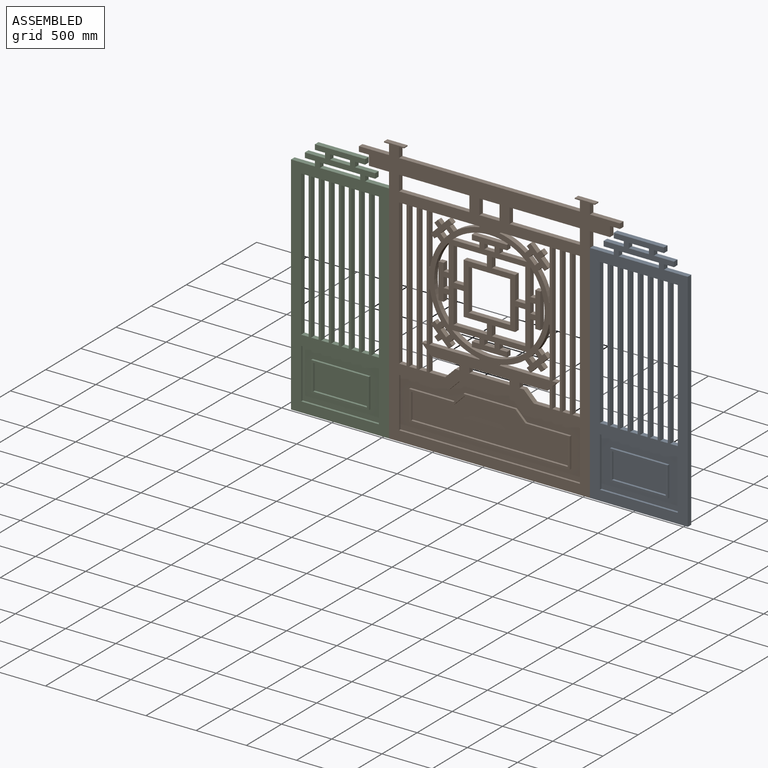
[diagram: assembled view]
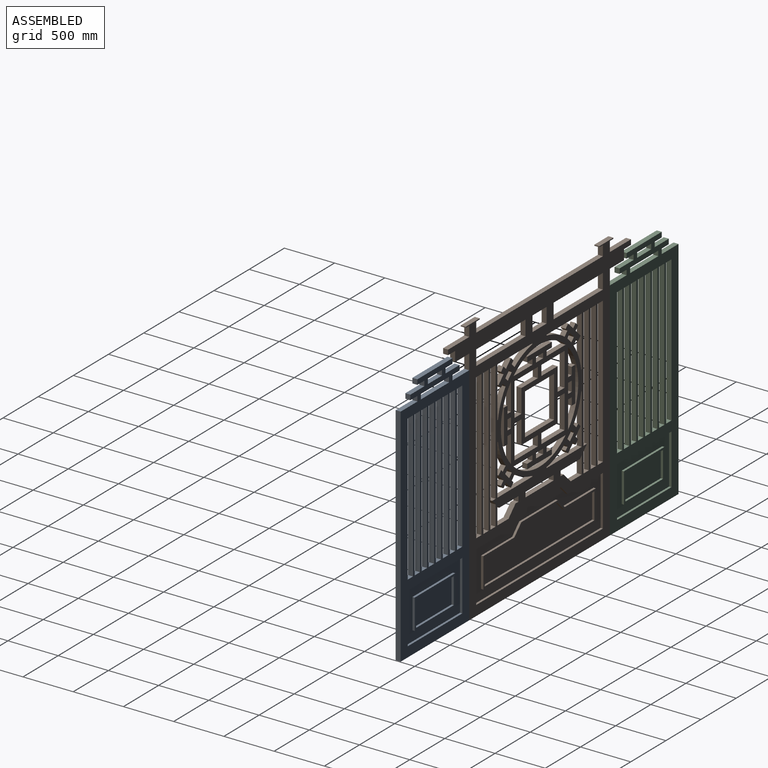
[diagram: assembled view, second angle]
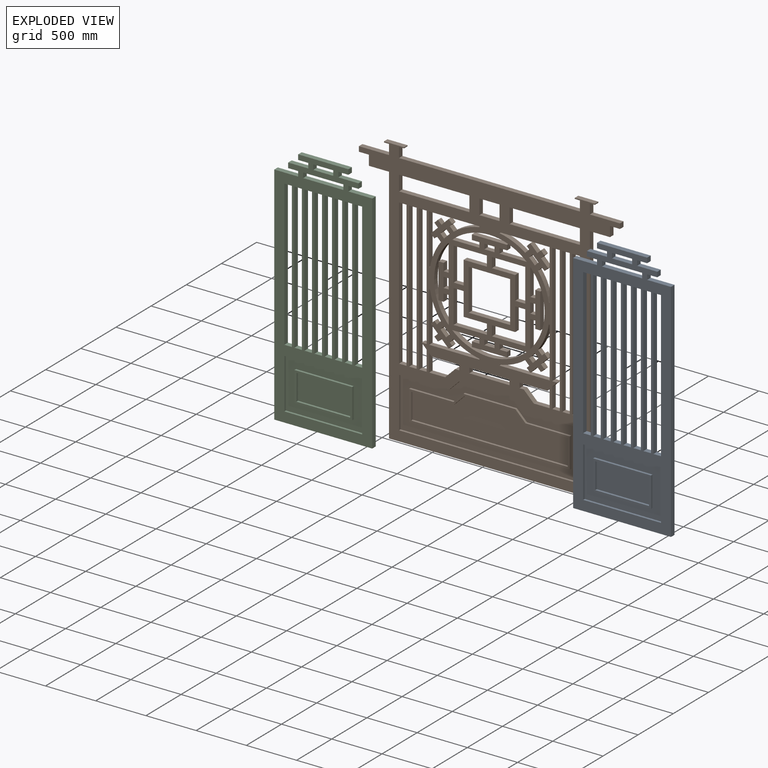
[diagram: exploded view]
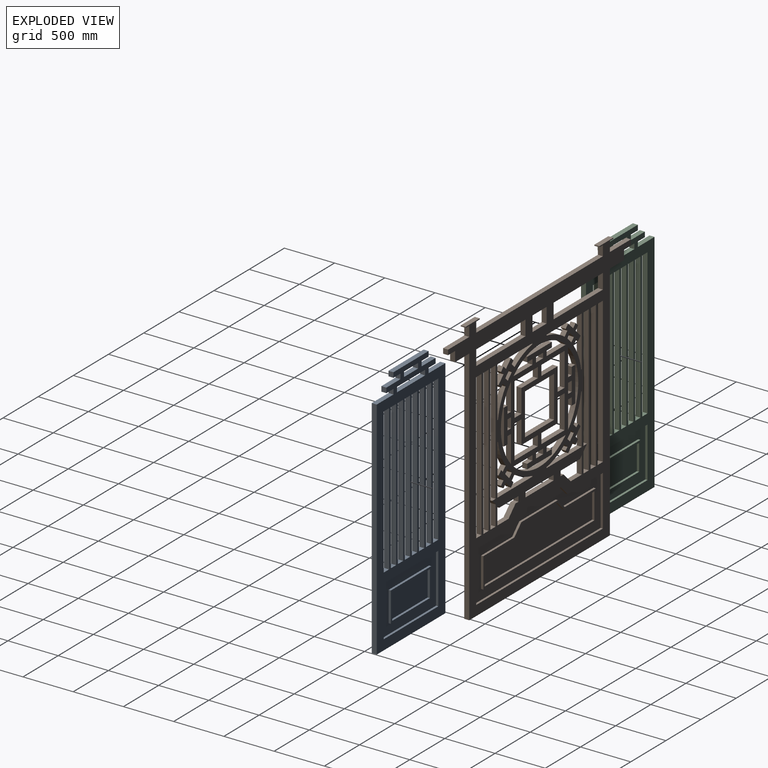
[diagram: exploded view, second angle]
ASSEMBLY  parts=3 mates=2
PART A: 92 faces, bbox 975x50x2450 mm
  f0: plane 2450x975mm, normal (0,-1,0), area 1006250mm2, adj f1,f2,f3,f4,f5,f6,f7,f8
  f1: plane 75x50mm, normal (0,0,1), area 3750mm2, adj f0,f2,f60,f61
  f2: plane 1450x50mm, normal (1,0,0), area 72500mm2, adj f0,f1,f3,f61
  f3: plane 75x50mm, normal (0,0,-1), area 3750mm2, adj f0,f2,f60,f61
  f4: plane 75x50mm, normal (0,0,1), area 3750mm2, adj f0,f5,f50,f61
  f5: plane 1450x50mm, normal (1,0,0), area 72500mm2, adj f0,f4,f6,f61
  f6: plane 75x50mm, normal (0,0,-1), area 3750mm2, adj f0,f5,f50,f61
  f7: plane 1450x50mm, normal (1,0,0), area 72500mm2, adj f0,f8,f51,f61
  f8: plane 75x50mm, normal (0,0,-1), area 3750mm2, adj f0,f7,f9,f61
  f9: plane 1450x50mm, normal (-1,0,0), area 72500mm2, adj f0,f8,f51,f61
  f10: plane 1450x50mm, normal (1,0,0), area 72500mm2, adj f0,f11,f52,f61
  f11: plane 75x50mm, normal (0,0,-1), area 3750mm2, adj f0,f10,f12,f61
  f12: plane 1450x50mm, normal (-1,0,0), area 72500mm2, adj f0,f11,f52,f61
  f13: plane 1450x50mm, normal (1,0,0), area 72500mm2, adj f0,f14,f53,f61
  f14: plane 75x50mm, normal (0,0,-1), area 3750mm2, adj f0,f13,f15,f61
  f15: plane 1450x50mm, normal (-1,0,0), area 72500mm2, adj f0,f14,f53,f61
  f16: plane 1450x50mm, normal (1,0,0), area 72500mm2, adj f0,f17,f54,f61
  f17: plane 75x50mm, normal (0,0,-1), area 3750mm2, adj f0,f16,f18,f61
  f18: plane 1450x50mm, normal (-1,0,0), area 72500mm2, adj f0,f17,f54,f61
  f19: plane 1450x50mm, normal (1,0,0), area 72500mm2, adj f0,f20,f55,f61
  f20: plane 75x50mm, normal (0,0,-1), area 3750mm2, adj f0,f19,f21,f61
  f21: plane 1450x50mm, normal (-1,0,0), area 72500mm2, adj f0,f20,f55,f61
  f22: plane 1450x50mm, normal (1,0,0), area 72500mm2, adj f0,f23,f56,f61
  f23: plane 75x50mm, normal (0,0,-1), area 3750mm2, adj f0,f22,f24,f61
  f24: plane 1450x50mm, normal (-1,0,0), area 72500mm2, adj f0,f23,f56,f61
  f25: plane 400x50mm, normal (0,0,1), area 20000mm2, adj f0,f26,f57,f61
  f26: plane 50x50mm, normal (1,0,0), area 2500mm2, adj f0,f25,f27,f61
  f27: plane 400x50mm, normal (0,0,-1), area 20000mm2, adj f0,f26,f57,f61
  f28: plane 200x50mm, normal (0,0,1), area 10000mm2, adj f0,f29,f58,f61
  f29: plane 50x50mm, normal (1,0,0), area 2500mm2, adj f0,f28,f30,f61
  f30: plane 200x50mm, normal (0,0,-1), area 10000mm2, adj f0,f29,f58,f61
  f31: plane 50x50mm, normal (-1,0,0), area 2500mm2, adj f0,f32,f59,f61
  f32: plane 200x50mm, normal (0,0,1), area 10000mm2, adj f0,f31,f33,f61
  f33: plane 50x50mm, normal (-1,0,0), area 2500mm2, adj f0,f32,f34,f61
  f34: plane 100x50mm, normal (0,0,-1), area 5000mm2, adj f0,f33,f35,f61
  f35: plane 50x50mm, normal (-1,0,0), area 2500mm2, adj f0,f34,f36,f61
  f36: plane 237.5x50mm, normal (0,0,1), area 11875mm2, adj f0,f35,f37,f61
  f37: plane 2250x50mm, normal (-1,0,0), area 112500mm2, adj f0,f36,f38,f61
  f38: plane 975x50mm, normal (0,0,-1), area 48750mm2, adj f0,f37,f39,f61
  f39: plane 2250x50mm, normal (1,0,0), area 112500mm2, adj f0,f38,f40,f61
  f40: plane 237.5x50mm, normal (0,0,1), area 11875mm2, adj f0,f39,f41,f61
  f41: plane 50x50mm, normal (1,0,0), area 2500mm2, adj f0,f40,f42,f61
  f42: plane 100x50mm, normal (0,0,-1), area 5000mm2, adj f0,f41,f43,f61
  f43: plane 50x50mm, normal (1,0,0), area 2500mm2, adj f0,f42,f44,f61
  f44: plane 200x50mm, normal (0,0,1), area 10000mm2, adj f0,f43,f45,f61
  f45: plane 50x50mm, normal (1,0,0), area 2500mm2, adj f0,f44,f46,f61
  f46: plane 100x50mm, normal (0,0,-1), area 5000mm2, adj f0,f45,f47,f61
  f47: plane 50x50mm, normal (1,0,0), area 2500mm2, adj f0,f46,f48,f61
  f48: plane 500x50mm, normal (0,0,1), area 25000mm2, adj f0,f47,f49,f61
  f49: plane 50x50mm, normal (-1,0,0), area 2500mm2, adj f0,f48,f59,f61
  f50: plane 1450x50mm, normal (-1,0,0), area 72500mm2, adj f0,f4,f6,f61
  f51: plane 75x50mm, normal (0,0,1), area 3750mm2, adj f0,f7,f9,f61
  f52: plane 75x50mm, normal (0,0,1), area 3750mm2, adj f0,f10,f12,f61
  f53: plane 75x50mm, normal (0,0,1), area 3750mm2, adj f0,f13,f15,f61
  f54: plane 75x50mm, normal (0,0,1), area 3750mm2, adj f0,f16,f18,f61
  f55: plane 75x50mm, normal (0,0,1), area 3750mm2, adj f0,f19,f21,f61
  f56: plane 75x50mm, normal (0,0,1), area 3750mm2, adj f0,f22,f24,f61
  f57: plane 50x50mm, normal (-1,0,0), area 2500mm2, adj f0,f25,f27,f61
  f58: plane 50x50mm, normal (-1,0,0), area 2500mm2, adj f0,f28,f30,f61
  f59: plane 100x50mm, normal (0,0,-1), area 5000mm2, adj f0,f31,f49,f61
  f60: plane 1450x50mm, normal (-1,0,0), area 72500mm2, adj f0,f1,f3,f61
  f61: plane 2450x975mm, normal (0,1,0), area 1006250mm2, adj f1,f2,f3,f4,f5,f6,f7,f8
  f62: plane 775x22.5mm, normal (0,0,-1), area 17437.5mm2, adj f0,f63,f69,f70
  f63: plane 500x22.5mm, normal (1,0,0), area 11250mm2, adj f0,f62,f64,f70
  f64: plane 775x22.5mm, normal (0,0,1), area 17437.5mm2, adj f0,f63,f69,f70
  f65: plane 575x22.5mm, normal (0,0,1), area 12937.5mm2, adj f66,f68,f70,f71
  f66: plane 300x22.5mm, normal (1,0,0), area 6750mm2, adj f65,f67,f70,f71
  f67: plane 575x22.5mm, normal (0,0,-1), area 12937.5mm2, adj f66,f68,f70,f71
  f68: plane 300x22.5mm, normal (-1,0,0), area 6750mm2, adj f65,f67,f70,f71
  f69: plane 500x22.5mm, normal (-1,0,0), area 11250mm2, adj f0,f62,f64,f70
  f70: plane 775x500mm, normal (0,-1,0), area 215000mm2, adj f62,f63,f64,f65,f66,f67,f68,f69
  f71: plane 575x300mm, normal (0,-1,0), area 33400mm2, adj f65,f66,f67,f68,f72,f73,f74,f75
  f72: plane 260x22.5mm, normal (-1,0,0), area 5850mm2, adj f71,f73,f75,f76
  f73: plane 535x22.5mm, normal (0,0,-1), area 12037.5mm2, adj f71,f72,f74,f76
  f74: plane 260x22.5mm, normal (1,0,0), area 5850mm2, adj f71,f73,f75,f76
  f75: plane 535x22.5mm, normal (0,0,1), area 12037.5mm2, adj f71,f72,f74,f76
  f76: plane 535x260mm, normal (0,-1,0), area 139100mm2, adj f72,f73,f74,f75
  f77: plane 775x22.5mm, normal (0,0,-1), area 17437.5mm2, adj f61,f78,f84,f85
  f78: plane 500x22.5mm, normal (-1,0,0), area 11250mm2, adj f61,f77,f79,f85
  f79: plane 775x22.5mm, normal (0,0,1), area 17437.5mm2, adj f61,f78,f84,f85
  f80: plane 575x22.5mm, normal (0,0,1), area 12937.5mm2, adj f81,f83,f85,f86
  f81: plane 300x22.5mm, normal (-1,0,0), area 6750mm2, adj f80,f82,f85,f86
  f82: plane 575x22.5mm, normal (0,0,-1), area 12937.5mm2, adj f81,f83,f85,f86
  f83: plane 300x22.5mm, normal (1,0,0), area 6750mm2, adj f80,f82,f85,f86
  f84: plane 500x22.5mm, normal (1,0,0), area 11250mm2, adj f61,f77,f79,f85
  f85: plane 775x500mm, normal (0,1,0), area 215000mm2, adj f77,f78,f79,f80,f81,f82,f83,f84
  f86: plane 575x300mm, normal (0,1,0), area 33400mm2, adj f80,f81,f82,f83,f87,f88,f89,f90
  f87: plane 260x22.5mm, normal (-1,0,0), area 5850mm2, adj f86,f88,f90,f91
  f88: plane 535x22.5mm, normal (0,0,1), area 12037.5mm2, adj f86,f87,f89,f91
  f89: plane 260x22.5mm, normal (1,0,0), area 5850mm2, adj f86,f88,f90,f91
  f90: plane 535x22.5mm, normal (0,0,-1), area 12037.5mm2, adj f86,f87,f89,f91
  f91: plane 535x260mm, normal (0,1,0), area 139100mm2, adj f87,f88,f89,f90
PART B: 312 faces, bbox 2600x50x2660 mm
  f0: plane 2660x2600mm, normal (0,1,0), area 2418745.5mm2, adj f1,f2,f3,f4,f5,f6,f7,f8
  f1: plane 75x50mm, normal (0,0,-1), area 3750mm2, adj f0,f2,f256,f257
  f2: plane 1450x50mm, normal (-1,0,0), area 72500mm2, adj f0,f1,f3,f257
  f3: plane 75x50mm, normal (0,0,1), area 3750mm2, adj f0,f2,f256,f257
  f4: plane 50x41.42mm, normal (0,0,1), area 2071.1mm2, adj f0,f5,f223,f257
  f5: plane 50x50mm, normal (1,0,0), area 2500mm2, adj f0,f4,f6,f257
  f6: plane 275x50mm, normal (0,0,-1), area 13750mm2, adj f0,f5,f7,f257
  f7: plane 50x25mm, normal (0.71,0,-0.71), area 1767.8mm2, adj f0,f6,f8,f257
  f8: plane 175x50mm, normal (-1,0,0), area 8750mm2, adj f0,f7,f9,f257
  f9: plane 158.58x50mm, normal (0,0,1), area 7928.9mm2, adj f0,f8,f223,f257
  f10: plane 75x50mm, normal (0,0,-1), area 3750mm2, adj f0,f11,f224,f257
  f11: plane 1450x50mm, normal (-1,0,0), area 72500mm2, adj f0,f10,f12,f257
  f12: plane 75x50mm, normal (0,0,1), area 3750mm2, adj f0,f11,f13,f257
  f13: plane 200x50mm, normal (1,0,0), area 10000mm2, adj f0,f12,f14,f257
  f14: plane 50x50mm, normal (0.71,0,-0.71), area 3535.5mm2, adj f0,f13,f15,f257
  f15: plane 50x50mm, normal (0,0,1), area 2500mm2, adj f0,f14,f224,f257
  f16: plane 331.59x50mm, normal (0,0,-1), area 16579.3mm2, adj f0,f17,f225,f257
  f17: plane 331.59x50mm, normal (-1,0,0), area 16579.3mm2, adj f0,f16,f18,f257
  f18: plane 100x50mm, normal (0,0,1), area 5000mm2, adj f0,f17,f19,f257
  f19: plane 231.59x50mm, normal (1,0,0), area 11579.3mm2, adj f0,f18,f20,f257
  f20: plane 231.59x50mm, normal (0,0,1), area 11579.3mm2, adj f0,f19,f225,f257
  f21: plane 50x50mm, normal (-1,0,0), area 2500mm2, adj f0,f22,f226,f257
  f22: plane 75x50mm, normal (0,0,-1), area 3750mm2, adj f0,f21,f23,f257
  f23: plane 50x50mm, normal (-1,0,0), area 2500mm2, adj f0,f22,f24,f257
  f24: plane 270.39x50mm, normal (0,0,1), area 13519.4mm2, adj f0,f23,f25,f257
  f25: cylinder r=550mm len=740.78mm, axis (0,1,0), area 40636.4mm2, adj f0,f24,f26,f257
  f26: plane 270.39x50mm, normal (0,0,1), area 13519.4mm2, adj f0,f25,f27,f257
  f27: plane 50x50mm, normal (1,0,0), area 2500mm2, adj f0,f26,f28,f257
  f28: plane 75x50mm, normal (0,0,-1), area 3750mm2, adj f0,f27,f29,f257
  f29: plane 50x50mm, normal (1,0,0), area 2500mm2, adj f0,f28,f226,f257
  f30: plane 50x50mm, normal (1,0,0), area 2500mm2, adj f0,f31,f227,f257
  f31: plane 100x50mm, normal (0,0,-1), area 5000mm2, adj f0,f30,f32,f257
  f32: plane 50x50mm, normal (-1,0,0), area 2500mm2, adj f0,f31,f227,f257
  f33: plane 50x50mm, normal (0,0,-1), area 2500mm2, adj f0,f34,f228,f257
  f34: plane 100x50mm, normal (-1,0,0), area 5000mm2, adj f0,f33,f35,f257
  f35: plane 50x50mm, normal (0,0,1), area 2500mm2, adj f0,f34,f228,f257
  f36: plane 50x50mm, normal (0,0,1), area 2500mm2, adj f0,f37,f229,f257
  f37: plane 75x50mm, normal (1,0,0), area 3750mm2, adj f0,f36,f38,f257
  f38: plane 50x50mm, normal (0,0,1), area 2500mm2, adj f0,f37,f39,f257
  f39: plane 350x50mm, normal (-1,0,0), area 17500mm2, adj f0,f38,f40,f257
  f40: plane 50x50mm, normal (0,0,-1), area 2500mm2, adj f0,f39,f41,f257
  f41: plane 75x50mm, normal (1,0,0), area 3750mm2, adj f0,f40,f42,f257
  f42: plane 50x50mm, normal (0,0,-1), area 2500mm2, adj f0,f41,f43,f257
  f43: plane 270.39x50mm, normal (-1,0,0), area 13519.4mm2, adj f0,f42,f44,f257
  f44: cylinder r=550mm len=740.78mm, axis (0,1,0), area 40636.4mm2, adj f0,f43,f229,f257
  f45: plane 50x50mm, normal (0,0,1), area 2500mm2, adj f0,f46,f230,f257
  f46: plane 75x50mm, normal (-1,0,0), area 3750mm2, adj f0,f45,f47,f257
  f47: plane 50x50mm, normal (0,0,1), area 2500mm2, adj f0,f46,f48,f257
  f48: plane 270.39x50mm, normal (1,0,0), area 13519.4mm2, adj f0,f47,f49,f257
  f49: cylinder r=550mm len=740.78mm, axis (0,1,0), area 40636.4mm2, adj f0,f48,f50,f257
  f50: plane 270.39x50mm, normal (1,0,0), area 13519.4mm2, adj f0,f49,f51,f257
  f51: plane 50x50mm, normal (0,0,-1), area 2500mm2, adj f0,f50,f52,f257
  f52: plane 75x50mm, normal (-1,0,0), area 3750mm2, adj f0,f51,f53,f257
  f53: plane 50x50mm, normal (0,0,-1), area 2500mm2, adj f0,f52,f230,f257
  f54: plane 270.39x50mm, normal (0,0,-1), area 13519.4mm2, adj f0,f55,f231,f257
  f55: plane 50x50mm, normal (-1,0,0), area 2500mm2, adj f0,f54,f56,f257
  f56: plane 75x50mm, normal (0,0,1), area 3750mm2, adj f0,f55,f57,f257
  f57: plane 50x50mm, normal (-1,0,0), area 2500mm2, adj f0,f56,f58,f257
  f58: plane 350x50mm, normal (0,0,-1), area 17500mm2, adj f0,f57,f59,f257
  f59: plane 50x50mm, normal (1,0,0), area 2500mm2, adj f0,f58,f60,f257
  f60: plane 75x50mm, normal (0,0,1), area 3750mm2, adj f0,f59,f61,f257
  f61: plane 50x50mm, normal (1,0,0), area 2500mm2, adj f0,f60,f62,f257
  f62: plane 270.39x50mm, normal (0,0,-1), area 13519.4mm2, adj f0,f61,f231,f257
  f63: plane 50x50mm, normal (1,0,0), area 2500mm2, adj f0,f64,f232,f257
  f64: plane 100x50mm, normal (0,0,-1), area 5000mm2, adj f0,f63,f65,f257
  f65: plane 50x50mm, normal (-1,0,0), area 2500mm2, adj f0,f64,f232,f257
  f66: plane 50x36.3mm, normal (0.71,0,-0.71), area 2566.7mm2, adj f0,f67,f233,f257
  f67: plane 56.57x56.57mm, normal (-0.71,0,-0.71), area 4000mm2, adj f0,f66,f68,f257
  f68: plane 50x36.3mm, normal (-0.71,0,0.71), area 2566.7mm2, adj f0,f67,f233,f257
  f69: plane 150x50mm, normal (1,0,0), area 7500mm2, adj f0,f70,f234,f257
  f70: plane 200x50mm, normal (0,0,-1), area 10000mm2, adj f0,f69,f71,f257
  f71: plane 150x50mm, normal (-1,0,0), area 7500mm2, adj f0,f70,f234,f257
  f72: plane 150x50mm, normal (1,0,0), area 7500mm2, adj f0,f73,f235,f257
  f73: plane 700x50mm, normal (0,0,-1), area 35000mm2, adj f0,f72,f74,f257
  f74: plane 150x50mm, normal (-1,0,0), area 7500mm2, adj f0,f73,f235,f257
  f75: plane 150x50mm, normal (1,0,0), area 7500mm2, adj f0,f76,f236,f257
  f76: plane 700x50mm, normal (0,0,-1), area 35000mm2, adj f0,f75,f77,f257
  f77: plane 150x50mm, normal (-1,0,0), area 7500mm2, adj f0,f76,f236,f257
  f78: plane 50x35.36mm, normal (0.71,0,-0.71), area 2500mm2, adj f0,f79,f237,f257
  f79: plane 50x35.36mm, normal (0.71,0,0.71), area 2500mm2, adj f0,f78,f80,f257
  f80: plane 70.71x70.71mm, normal (0.71,0,-0.71), area 5000mm2, adj f0,f79,f81,f257
  f81: plane 50x35.36mm, normal (0.71,0,0.71), area 2500mm2, adj f0,f80,f82,f257
  f82: plane 50x24.75mm, normal (-0.71,0,0.71), area 1750mm2, adj f0,f81,f83,f257
  f83: plane 50x40.16mm, normal (0.71,0,0.71), area 2839.4mm2, adj f0,f82,f84,f257
  f84: cylinder r=600mm len=255.82mm, axis (0,1,0), area 14021.5mm2, adj f0,f83,f85,f257
  f85: plane 50x8.39mm, normal (0,0,-1), area 419.6mm2, adj f0,f84,f86,f257
  f86: plane 500x50mm, normal (-1,0,0), area 25000mm2, adj f0,f85,f87,f257
  f87: plane 500x50mm, normal (0,0,1), area 25000mm2, adj f0,f86,f88,f257
  f88: plane 50x8.39mm, normal (1,0,0), area 419.6mm2, adj f0,f87,f89,f257
  f89: cylinder r=600mm len=255.82mm, axis (0,1,0), area 14021.5mm2, adj f0,f88,f90,f257
  f90: plane 50x40.16mm, normal (-0.71,0,-0.71), area 2839.4mm2, adj f0,f89,f91,f257
  f91: plane 50x24.75mm, normal (-0.71,0,0.71), area 1750mm2, adj f0,f90,f92,f257
  f92: plane 50x35.36mm, normal (-0.71,0,-0.71), area 2500mm2, adj f0,f91,f93,f257
  f93: plane 70.71x70.71mm, normal (0.71,0,-0.71), area 5000mm2, adj f0,f92,f237,f257
  f94: plane 50x36.3mm, normal (-0.71,0,-0.71), area 2566.7mm2, adj f0,f95,f238,f257
  f95: plane 56.57x56.57mm, normal (-0.71,0,0.71), area 4000mm2, adj f0,f94,f96,f257
  f96: plane 50x36.3mm, normal (0.71,0,0.71), area 2566.7mm2, adj f0,f95,f238,f257
  f97: plane 50x35.36mm, normal (-0.71,0,0.71), area 2500mm2, adj f0,f98,f239,f257
  f98: plane 50x35.36mm, normal (-0.71,0,-0.71), area 2500mm2, adj f0,f97,f99,f257
  f99: plane 50x35.36mm, normal (0.71,0,-0.71), area 2500mm2, adj f0,f98,f100,f257
  f100: plane 70.71x70.71mm, normal (-0.71,0,-0.71), area 5000mm2, adj f0,f99,f101,f257
  f101: plane 50x35.36mm, normal (0.71,0,-0.71), area 2500mm2, adj f0,f100,f102,f257
  f102: plane 50x24.75mm, normal (0.71,0,0.71), area 1750mm2, adj f0,f101,f103,f257
  f103: plane 50x40.16mm, normal (0.71,0,-0.71), area 2839.4mm2, adj f0,f102,f104,f257
  f104: cylinder r=600mm len=255.82mm, axis (0,1,0), area 14021.5mm2, adj f0,f103,f105,f257
  f105: plane 50x8.39mm, normal (-1,0,0), area 419.6mm2, adj f0,f104,f106,f257
  f106: plane 500x50mm, normal (0,0,1), area 25000mm2, adj f0,f105,f107,f257
  f107: plane 500x50mm, normal (1,0,0), area 25000mm2, adj f0,f106,f108,f257
  f108: plane 50x8.39mm, normal (0,0,-1), area 419.6mm2, adj f0,f107,f109,f257
  f109: cylinder r=600mm len=255.82mm, axis (0,1,0), area 14021.5mm2, adj f0,f108,f110,f257
  f110: plane 50x40.16mm, normal (-0.71,0,0.71), area 2839.4mm2, adj f0,f109,f111,f257
  f111: plane 50x24.75mm, normal (0.71,0,0.71), area 1750mm2, adj f0,f110,f112,f257
  f112: plane 50x35.36mm, normal (-0.71,0,0.71), area 2500mm2, adj f0,f111,f239,f257
  f113: plane 50x36.3mm, normal (-0.71,0,0.71), area 2566.7mm2, adj f0,f114,f240,f257
  f114: plane 56.57x56.57mm, normal (0.71,0,0.71), area 4000mm2, adj f0,f113,f115,f257
  f115: plane 50x36.3mm, normal (0.71,0,-0.71), area 2566.7mm2, adj f0,f114,f240,f257
  f116: plane 50x36.3mm, normal (0.71,0,0.71), area 2566.7mm2, adj f0,f117,f241,f257
  f117: plane 56.57x56.57mm, normal (0.71,0,-0.71), area 4000mm2, adj f0,f116,f118,f257
  f118: plane 50x36.3mm, normal (-0.71,0,-0.71), area 2566.7mm2, adj f0,f117,f241,f257
  f119: plane 50x35.36mm, normal (0.71,0,0.71), area 2500mm2, adj f0,f120,f242,f257
  f120: plane 50x35.36mm, normal (-0.71,0,0.71), area 2500mm2, adj f0,f119,f121,f257
  f121: plane 50x35.36mm, normal (-0.71,0,-0.71), area 2500mm2, adj f0,f120,f122,f257
  f122: plane 70.71x70.71mm, normal (-0.71,0,0.71), area 5000mm2, adj f0,f121,f123,f257
  f123: plane 50x35.36mm, normal (-0.71,0,-0.71), area 2500mm2, adj f0,f122,f124,f257
  f124: plane 50x24.75mm, normal (0.71,0,-0.71), area 1750mm2, adj f0,f123,f125,f257
  f125: plane 50x40.16mm, normal (-0.71,0,-0.71), area 2839.4mm2, adj f0,f124,f126,f257
  f126: cylinder r=600mm len=255.82mm, axis (0,1,0), area 14021.5mm2, adj f0,f125,f127,f257
  f127: plane 50x8.39mm, normal (0,0,1), area 419.6mm2, adj f0,f126,f128,f257
  f128: plane 500x50mm, normal (1,0,0), area 25000mm2, adj f0,f127,f129,f257
  f129: plane 500x50mm, normal (0,0,-1), area 25000mm2, adj f0,f128,f130,f257
  f130: plane 50x8.39mm, normal (-1,0,0), area 419.6mm2, adj f0,f129,f131,f257
  f131: cylinder r=600mm len=255.82mm, axis (0,1,0), area 14021.5mm2, adj f0,f130,f132,f257
  f132: plane 50x40.16mm, normal (0.71,0,0.71), area 2839.4mm2, adj f0,f131,f133,f257
  f133: plane 50x24.75mm, normal (0.71,0,-0.71), area 1750mm2, adj f0,f132,f134,f257
  f134: plane 50x35.36mm, normal (0.71,0,0.71), area 2500mm2, adj f0,f133,f242,f257
  f135: plane 50x40.16mm, normal (0.71,0,-0.71), area 2839.4mm2, adj f0,f136,f243,f257
  f136: plane 50x24.75mm, normal (-0.71,0,-0.71), area 1750mm2, adj f0,f135,f137,f257
  f137: plane 50x35.36mm, normal (0.71,0,-0.71), area 2500mm2, adj f0,f136,f138,f257
  f138: plane 70.71x70.71mm, normal (0.71,0,0.71), area 5000mm2, adj f0,f137,f139,f257
  f139: plane 50x35.36mm, normal (0.71,0,-0.71), area 2500mm2, adj f0,f138,f140,f257
  f140: plane 50x35.36mm, normal (0.71,0,0.71), area 2500mm2, adj f0,f139,f141,f257
  f141: plane 50x35.36mm, normal (-0.71,0,0.71), area 2500mm2, adj f0,f140,f142,f257
  f142: plane 70.71x70.71mm, normal (0.71,0,0.71), area 5000mm2, adj f0,f141,f143,f257
  f143: plane 50x35.36mm, normal (-0.71,0,0.71), area 2500mm2, adj f0,f142,f144,f257
  f144: plane 50x24.75mm, normal (-0.71,0,-0.71), area 1750mm2, adj f0,f143,f145,f257
  f145: plane 50x40.16mm, normal (-0.71,0,0.71), area 2839.4mm2, adj f0,f144,f146,f257
  f146: cylinder r=600mm len=255.82mm, axis (0,1,0), area 14021.5mm2, adj f0,f145,f147,f257
  f147: plane 50x8.39mm, normal (1,0,0), area 419.6mm2, adj f0,f146,f148,f257
  f148: plane 500x50mm, normal (0,0,-1), area 25000mm2, adj f0,f147,f149,f257
  f149: plane 500x50mm, normal (-1,0,0), area 25000mm2, adj f0,f148,f150,f257
  f150: plane 50x8.39mm, normal (0,0,1), area 419.6mm2, adj f0,f149,f243,f257
  f151: plane 100x50mm, normal (1,0,0), area 5000mm2, adj f0,f152,f244,f257
  f152: plane 50x50mm, normal (0,0,-1), area 2500mm2, adj f0,f151,f153,f257
  f153: plane 100x50mm, normal (-1,0,0), area 5000mm2, adj f0,f152,f244,f257
  f154: plane 331.59x50mm, normal (-1,0,0), area 16579.3mm2, adj f0,f155,f245,f257
  f155: plane 331.59x50mm, normal (0,0,1), area 16579.3mm2, adj f0,f154,f156,f257
  f156: plane 100x50mm, normal (1,0,0), area 5000mm2, adj f0,f155,f157,f257
  f157: plane 231.59x50mm, normal (0,0,-1), area 11579.3mm2, adj f0,f156,f158,f257
  f158: plane 231.59x50mm, normal (1,0,0), area 11579.3mm2, adj f0,f157,f245,f257
  f159: plane 331.59x50mm, normal (1,0,0), area 16579.3mm2, adj f0,f160,f246,f257
  f160: plane 100x50mm, normal (0,0,-1), area 5000mm2, adj f0,f159,f161,f257
  f161: plane 231.59x50mm, normal (-1,0,0), area 11579.3mm2, adj f0,f160,f162,f257
  f162: plane 231.59x50mm, normal (0,0,-1), area 11579.3mm2, adj f0,f161,f163,f257
  f163: plane 100x50mm, normal (-1,0,0), area 5000mm2, adj f0,f162,f246,f257
  f164: plane 331.59x50mm, normal (1,0,0), area 16579.3mm2, adj f0,f165,f247,f257
  f165: plane 331.59x50mm, normal (0,0,-1), area 16579.3mm2, adj f0,f164,f166,f257
  f166: plane 100x50mm, normal (-1,0,0), area 5000mm2, adj f0,f165,f167,f257
  f167: plane 231.59x50mm, normal (0,0,1), area 11579.3mm2, adj f0,f166,f168,f257
  f168: plane 231.59x50mm, normal (-1,0,0), area 11579.3mm2, adj f0,f167,f247,f257
  f169: plane 413.17x50mm, normal (1,0,0), area 20658.6mm2, adj f0,f170,f248,f257
  f170: plane 413.17x50mm, normal (0,0,-1), area 20658.6mm2, adj f0,f169,f171,f257
  f171: plane 413.17x50mm, normal (-1,0,0), area 20658.6mm2, adj f0,f170,f248,f257
  f172: plane 50x50mm, normal (-1,0,0), area 2500mm2, adj f0,f173,f249,f257
  f173: plane 50x41.42mm, normal (0,0,1), area 2071.1mm2, adj f0,f172,f174,f257
  f174: plane 100x100mm, normal (-0.71,0,0.71), area 7071.1mm2, adj f0,f173,f175,f257
  f175: plane 158.58x50mm, normal (0,0,1), area 7928.9mm2, adj f0,f174,f176,f257
  f176: plane 175x50mm, normal (1,0,0), area 8750mm2, adj f0,f175,f177,f257
  f177: plane 50x25mm, normal (-0.71,0,-0.71), area 1767.8mm2, adj f0,f176,f249,f257
  f178: plane 75x50mm, normal (0,0,1), area 3750mm2, adj f0,f179,f250,f257
  f179: plane 1450x50mm, normal (1,0,0), area 72500mm2, adj f0,f178,f180,f257
  f180: plane 75x50mm, normal (0,0,-1), area 3750mm2, adj f0,f179,f181,f257
  f181: plane 1200x50mm, normal (-1,0,0), area 60000mm2, adj f0,f180,f182,f257
  f182: plane 50x50mm, normal (0,0,1), area 2500mm2, adj f0,f181,f183,f257
  f183: plane 50x50mm, normal (-0.71,0,-0.71), area 3535.5mm2, adj f0,f182,f250,f257
  f184: plane 1450x50mm, normal (1,0,0), area 72500mm2, adj f0,f185,f251,f257
  f185: plane 75x50mm, normal (0,0,-1), area 3750mm2, adj f0,f184,f186,f257
  f186: plane 1450x50mm, normal (-1,0,0), area 72500mm2, adj f0,f185,f251,f257
  f187: plane 1450x50mm, normal (1,0,0), area 72500mm2, adj f0,f188,f252,f257
  f188: plane 75x50mm, normal (0,0,-1), area 3750mm2, adj f0,f187,f189,f257
  f189: plane 1450x50mm, normal (-1,0,0), area 72500mm2, adj f0,f188,f252,f257
  f190: plane 1450x50mm, normal (1,0,0), area 72500mm2, adj f0,f191,f253,f257
  f191: plane 75x50mm, normal (0,0,-1), area 3750mm2, adj f0,f190,f192,f257
  f192: plane 1450x50mm, normal (-1,0,0), area 72500mm2, adj f0,f191,f253,f257
  f193: plane 400x50mm, normal (0,0,1), area 20000mm2, adj f0,f194,f254,f257
  f194: plane 50x50mm, normal (1,0,0), area 2500mm2, adj f0,f193,f195,f257
  f195: plane 400x50mm, normal (0,0,-1), area 20000mm2, adj f0,f194,f254,f257
  f196: plane 300x50mm, normal (0,0,1), area 15000mm2, adj f0,f197,f255,f257
  f197: plane 100x50mm, normal (1,0,0), area 5000mm2, adj f0,f196,f198,f257
  f198: plane 50x50mm, normal (0,0,-1), area 2500mm2, adj f0,f197,f199,f257
  f199: plane 50x10mm, normal (1,0,0), area 500mm2, adj f0,f198,f200,f257
  f200: plane 200x50mm, normal (0,0,1), area 10000mm2, adj f0,f199,f201,f257
  f201: plane 50x10mm, normal (-1,0,0), area 500mm2, adj f0,f200,f202,f257
  f202: plane 50x50mm, normal (0,0,-1), area 2500mm2, adj f0,f201,f203,f257
  f203: plane 100x50mm, normal (-1,0,0), area 5000mm2, adj f0,f202,f204,f257
  f204: plane 1800x50mm, normal (0,0,1), area 90000mm2, adj f0,f203,f205,f257
  f205: plane 100x50mm, normal (1,0,0), area 5000mm2, adj f0,f204,f206,f257
  f206: plane 50x50mm, normal (0,0,-1), area 2500mm2, adj f0,f205,f207,f257
  f207: plane 50x10mm, normal (1,0,0), area 500mm2, adj f0,f206,f208,f257
  f208: plane 200x50mm, normal (0,0,1), area 10000mm2, adj f0,f207,f209,f257
  f209: plane 50x10mm, normal (-1,0,0), area 500mm2, adj f0,f208,f210,f257
  f210: plane 50x50mm, normal (0,0,-1), area 2500mm2, adj f0,f209,f211,f257
  f211: plane 100x50mm, normal (-1,0,0), area 5000mm2, adj f0,f210,f212,f257
  f212: plane 300x50mm, normal (0,0,1), area 15000mm2, adj f0,f211,f213,f257
  f213: plane 50x50mm, normal (-1,0,0), area 2500mm2, adj f0,f212,f214,f257
  f214: plane 100x50mm, normal (0,0,-1), area 5000mm2, adj f0,f213,f215,f257
  f215: plane 100x50mm, normal (-1,0,0), area 5000mm2, adj f0,f214,f216,f257
  f216: plane 200x50mm, normal (0,0,-1), area 10000mm2, adj f0,f215,f217,f257
  f217: plane 2400x50mm, normal (-1,0,0), area 120000mm2, adj f0,f216,f218,f257
  f218: plane 2000x50mm, normal (0,0,-1), area 100000mm2, adj f0,f217,f219,f257
  f219: plane 2400x50mm, normal (1,0,0), area 120000mm2, adj f0,f218,f220,f257
  f220: plane 200x50mm, normal (0,0,-1), area 10000mm2, adj f0,f219,f221,f257
  f221: plane 100x50mm, normal (1,0,0), area 5000mm2, adj f0,f220,f222,f257
  f222: plane 100x50mm, normal (0,0,-1), area 5000mm2, adj f0,f221,f255,f257
  f223: plane 100x100mm, normal (0.71,0,0.71), area 7071.1mm2, adj f0,f4,f9,f257
  f224: plane 1200x50mm, normal (1,0,0), area 60000mm2, adj f0,f10,f15,f257
  f225: plane 100x50mm, normal (1,0,0), area 5000mm2, adj f0,f16,f20,f257
  f226: plane 350x50mm, normal (0,0,1), area 17500mm2, adj f0,f21,f29,f257
  f227: plane 100x50mm, normal (0,0,1), area 5000mm2, adj f0,f30,f32,f257
  f228: plane 100x50mm, normal (1,0,0), area 5000mm2, adj f0,f33,f35,f257
  f229: plane 270.39x50mm, normal (-1,0,0), area 13519.4mm2, adj f0,f36,f44,f257
  f230: plane 350x50mm, normal (1,0,0), area 17500mm2, adj f0,f45,f53,f257
  f231: cylinder r=550mm len=740.78mm, axis (0,1,0), area 40636.4mm2, adj f0,f54,f62,f257
  f232: plane 100x50mm, normal (0,0,1), area 5000mm2, adj f0,f63,f65,f257
  f233: cylinder r=600mm len=56.57mm, axis (0,1,0), area 4003mm2, adj f0,f66,f68,f257
  f234: plane 200x50mm, normal (0,0,1), area 10000mm2, adj f0,f69,f71,f257
  f235: plane 700x50mm, normal (0,0,1), area 35000mm2, adj f0,f72,f74,f257
  f236: plane 700x50mm, normal (0,0,1), area 35000mm2, adj f0,f75,f77,f257
  f237: plane 50x35.36mm, normal (-0.71,0,-0.71), area 2500mm2, adj f0,f78,f93,f257
  f238: cylinder r=600mm len=56.57mm, axis (0,1,0), area 4003mm2, adj f0,f94,f96,f257
  f239: plane 70.71x70.71mm, normal (-0.71,0,-0.71), area 5000mm2, adj f0,f97,f112,f257
  f240: cylinder r=600mm len=56.57mm, axis (0,1,0), area 4003mm2, adj f0,f113,f115,f257
  f241: cylinder r=600mm len=56.57mm, axis (0,1,0), area 4003mm2, adj f0,f116,f118,f257
  f242: plane 70.71x70.71mm, normal (-0.71,0,0.71), area 5000mm2, adj f0,f119,f134,f257
  f243: cylinder r=600mm len=255.82mm, axis (0,1,0), area 14021.5mm2, adj f0,f135,f150,f257
  f244: plane 50x50mm, normal (0,0,1), area 2500mm2, adj f0,f151,f153,f257
  f245: plane 100x50mm, normal (0,0,-1), area 5000mm2, adj f0,f154,f158,f257
  f246: plane 331.59x50mm, normal (0,0,1), area 16579.3mm2, adj f0,f159,f163,f257
  f247: plane 100x50mm, normal (0,0,1), area 5000mm2, adj f0,f164,f168,f257
  f248: plane 413.17x50mm, normal (0,0,1), area 20658.6mm2, adj f0,f169,f171,f257
  f249: plane 275x50mm, normal (0,0,-1), area 13750mm2, adj f0,f172,f177,f257
  f250: plane 200x50mm, normal (-1,0,0), area 10000mm2, adj f0,f178,f183,f257
  f251: plane 75x50mm, normal (0,0,1), area 3750mm2, adj f0,f184,f186,f257
  f252: plane 75x50mm, normal (0,0,1), area 3750mm2, adj f0,f187,f189,f257
  f253: plane 75x50mm, normal (0,0,1), area 3750mm2, adj f0,f190,f192,f257
  f254: plane 50x50mm, normal (-1,0,0), area 2500mm2, adj f0,f193,f195,f257
  f255: plane 50x50mm, normal (1,0,0), area 2500mm2, adj f0,f196,f222,f257
  f256: plane 1450x50mm, normal (1,0,0), area 72500mm2, adj f0,f1,f3,f257
  f257: plane 2660x2600mm, normal (0,-1,0), area 2418745.5mm2, adj f1,f2,f3,f4,f5,f6,f7,f8
  f258: plane 500x22.5mm, normal (0,0,-1), area 11250mm2, adj f257,f259,f273,f274
  f259: plane 500x22.5mm, normal (1,0,0), area 11250mm2, adj f257,f258,f260,f274
  f260: plane 1800x22.5mm, normal (0,0,1), area 40500mm2, adj f257,f259,f261,f274
  f261: plane 500x22.5mm, normal (-1,0,0), area 11250mm2, adj f257,f260,f262,f274
  f262: plane 500x22.5mm, normal (0,0,-1), area 11250mm2, adj f257,f261,f263,f274
  f263: plane 100x100mm, normal (-0.71,0,-0.71), area 3182mm2, adj f257,f262,f264,f274
  f264: plane 600x22.5mm, normal (0,0,-1), area 13500mm2, adj f257,f263,f273,f274
  f265: plane 300x22.5mm, normal (-1,0,0), area 6750mm2, adj f266,f272,f274,f275
  f266: plane 441.42x22.5mm, normal (0,0,1), area 9932mm2, adj f265,f267,f274,f275
  f267: plane 100x100mm, normal (-0.71,0,0.71), area 3182mm2, adj f266,f268,f274,f275
  f268: plane 517.16x22.5mm, normal (0,0,1), area 11636mm2, adj f267,f269,f274,f275
  f269: plane 100x100mm, normal (0.71,0,0.71), area 3182mm2, adj f268,f270,f274,f275
  f270: plane 441.42x22.5mm, normal (0,0,1), area 9932mm2, adj f269,f271,f274,f275
  f271: plane 300x22.5mm, normal (1,0,0), area 6750mm2, adj f270,f272,f274,f275
  f272: plane 1600x22.5mm, normal (0,0,-1), area 36000mm2, adj f265,f271,f274,f275
  f273: plane 100x100mm, normal (0.71,0,-0.71), area 3182mm2, adj f257,f258,f264,f274
  f274: plane 1800x600mm, normal (0,-1,0), area 428284.3mm2, adj f258,f259,f260,f261,f262,f263,f264,f265
  f275: plane 1600x400mm, normal (0,-1,0), area 76056.9mm2, adj f265,f266,f267,f268,f269,f270,f271,f272
  f276: plane 429.71x22.5mm, normal (0,0,-1), area 9668.4mm2, adj f275,f277,f283,f284
  f277: plane 260x22.5mm, normal (1,0,0), area 5850mm2, adj f275,f276,f278,f284
  f278: plane 1560x22.5mm, normal (0,0,1), area 35100mm2, adj f275,f277,f279,f284
  f279: plane 260x22.5mm, normal (-1,0,0), area 5850mm2, adj f275,f278,f280,f284
  f280: plane 429.71x22.5mm, normal (0,0,-1), area 9668.4mm2, adj f275,f279,f281,f284
  f281: plane 100x100mm, normal (-0.71,0,-0.71), area 3182mm2, adj f275,f280,f282,f284
  f282: plane 500.59x22.5mm, normal (0,0,-1), area 11263.2mm2, adj f275,f281,f283,f284
  f283: plane 100x100mm, normal (0.71,0,-0.71), area 3182mm2, adj f275,f276,f282,f284
  f284: plane 1560x360mm, normal (0,-1,0), area 465658.9mm2, adj f276,f277,f278,f279,f280,f281,f282,f283
  f285: plane 500x22.5mm, normal (0,0,-1), area 11250mm2, adj f0,f286,f300,f301
  f286: plane 100x100mm, normal (0.71,0,-0.71), area 3182mm2, adj f0,f285,f287,f301
  f287: plane 600x22.5mm, normal (0,0,-1), area 13500mm2, adj f0,f286,f288,f301
  f288: plane 100x100mm, normal (-0.71,0,-0.71), area 3182mm2, adj f0,f287,f289,f301
  f289: plane 500x22.5mm, normal (0,0,-1), area 11250mm2, adj f0,f288,f290,f301
  f290: plane 500x22.5mm, normal (-1,0,0), area 11250mm2, adj f0,f289,f291,f301
  f291: plane 1800x22.5mm, normal (0,0,1), area 40500mm2, adj f0,f290,f300,f301
  f292: plane 300x22.5mm, normal (-1,0,0), area 6750mm2, adj f293,f299,f301,f302
  f293: plane 1600x22.5mm, normal (0,0,-1), area 36000mm2, adj f292,f294,f301,f302
  f294: plane 300x22.5mm, normal (1,0,0), area 6750mm2, adj f293,f295,f301,f302
  f295: plane 441.42x22.5mm, normal (0,0,1), area 9932mm2, adj f294,f296,f301,f302
  f296: plane 100x100mm, normal (0.71,0,0.71), area 3182mm2, adj f295,f297,f301,f302
  f297: plane 517.16x22.5mm, normal (0,0,1), area 11636mm2, adj f296,f298,f301,f302
  f298: plane 100x100mm, normal (-0.71,0,0.71), area 3182mm2, adj f297,f299,f301,f302
  f299: plane 441.42x22.5mm, normal (0,0,1), area 9932mm2, adj f292,f298,f301,f302
  f300: plane 500x22.5mm, normal (1,0,0), area 11250mm2, adj f0,f285,f291,f301
  f301: plane 1800x600mm, normal (0,1,0), area 428284.3mm2, adj f285,f286,f287,f288,f289,f290,f291,f292
  f302: plane 1600x400mm, normal (0,1,0), area 76056.9mm2, adj f292,f293,f294,f295,f296,f297,f298,f299
  f303: plane 429.71x22.5mm, normal (0,0,-1), area 9668.4mm2, adj f302,f304,f310,f311
  f304: plane 100x100mm, normal (0.71,0,-0.71), area 3182mm2, adj f302,f303,f305,f311
  f305: plane 500.59x22.5mm, normal (0,0,-1), area 11263.2mm2, adj f302,f304,f306,f311
  f306: plane 100x100mm, normal (-0.71,0,-0.71), area 3182mm2, adj f302,f305,f307,f311
  f307: plane 429.71x22.5mm, normal (0,0,-1), area 9668.4mm2, adj f302,f306,f308,f311
  f308: plane 260x22.5mm, normal (-1,0,0), area 5850mm2, adj f302,f307,f309,f311
  f309: plane 1560x22.5mm, normal (0,0,1), area 35100mm2, adj f302,f308,f310,f311
  f310: plane 260x22.5mm, normal (1,0,0), area 5850mm2, adj f302,f303,f309,f311
  f311: plane 1560x360mm, normal (0,1,0), area 465658.9mm2, adj f303,f304,f305,f306,f307,f308,f309,f310
PART C: same geometry as A
PLACE A rot(axis=(0,0,1),180deg) t=(2631.24,-81.72,545.66)mm
PLACE B t=(1143.74,-81.72,670.66)mm
PLACE C t=(-343.76,-81.72,545.66)mm
MATE fastened C.f0 <-> B.f257  axis (0,-1,0) through (143.74,-106.72,-879.34)mm
MATE fastened A.f61 <-> B.f257  axis (0,-1,0) through (2143.74,-106.72,-879.34)mm
